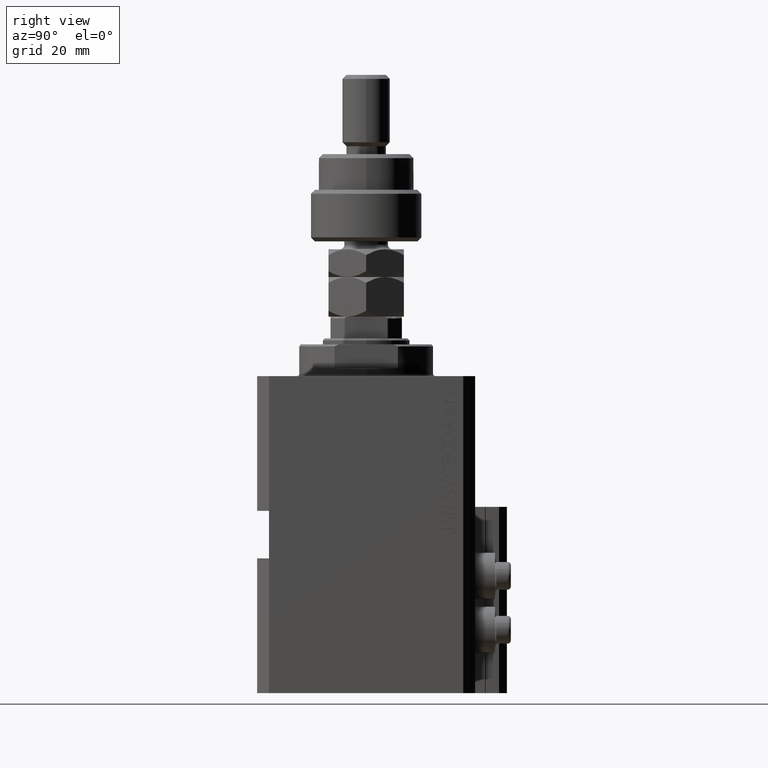
[diagram: clean part render]
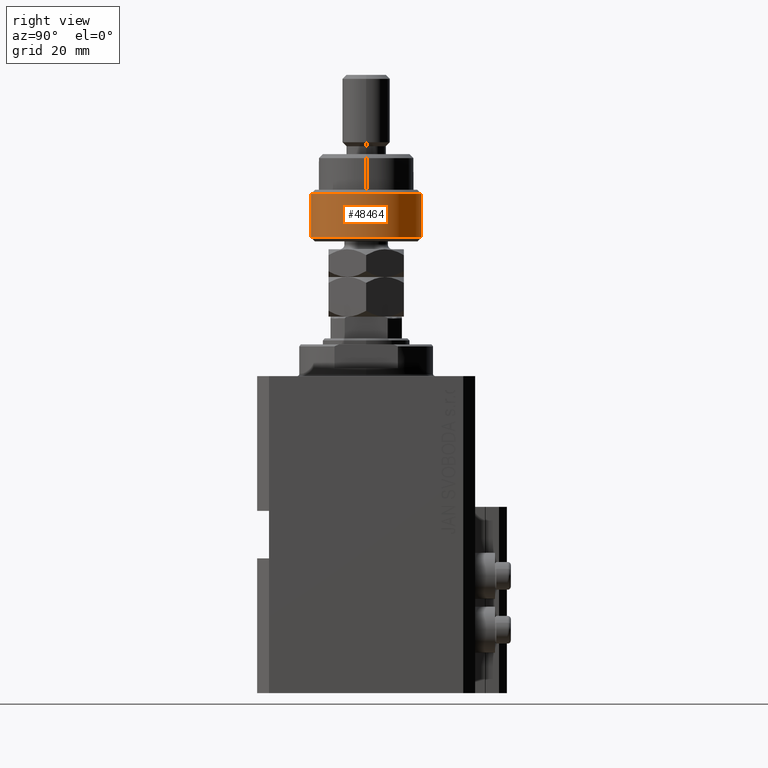
[diagram: same view with one face highlighted and labeled with its STEP entity id]
A machine part, right view. The second image highlights one B-rep face of the part: STEP entity #48464.
In plain terms, the highlighted cylindrical surface (partial cylindrical patch) has radius 14 mm, axis along (-0, -0, -1).
Its self-contained STEP definition (entity closure, byte-faithful):
#840 = ORIENTED_EDGE ( 'NONE', *, *, #25287, .F. ) ;
#1085 = DIRECTION ( 'NONE',  ( -0.000000000000000000, -0.000000000000000000, 1.000000000000000000 ) ) ;
#1456 = CARTESIAN_POINT ( 'NONE',  ( -12.64911064067351809, 6.000000000000000000, 12.00000000000002842 ) ) ;
#2351 = ORIENTED_EDGE ( 'NONE', *, *, #43654, .T. ) ;
#2534 = CARTESIAN_POINT ( 'NONE',  ( -12.64911064067351809, 6.000000000000000000, 14.50000000000000000 ) ) ;
#4039 = VECTOR ( 'NONE', #10296, 1000.000000000000000 ) ;
#5345 = EDGE_CURVE ( 'NONE', #43954, #23057, #42422, .T. ) ;
#5935 = CARTESIAN_POINT ( 'NONE',  ( 14.00000000000000000, 0.000000000000000000, 1.000000000000018208 ) ) ;
#6832 = CARTESIAN_POINT ( 'NONE',  ( -12.64911064067351809, 6.000000000000000000, 1.000000000000021760 ) ) ;
#7288 = CIRCLE ( 'NONE', #22507, 14.00000000000000000 ) ;
#8462 = DIRECTION ( 'NONE',  ( -0.000000000000000000, -0.000000000000000000, 1.000000000000000000 ) ) ;
#10296 = DIRECTION ( 'NONE',  ( -0.000000000000000000, -0.000000000000000000, -1.000000000000000000 ) ) ;
#11150 = ORIENTED_EDGE ( 'NONE', *, *, #5345, .T. ) ;
#16379 = DIRECTION ( 'NONE',  ( 1.000000000000000000, 0.000000000000000000, 0.000000000000000000 ) ) ;
#17806 = VERTEX_POINT ( 'NONE', #5935 ) ;
#18349 = CARTESIAN_POINT ( 'NONE',  ( -12.64911064067351809, -5.999999999999999112, 1.000000000000021760 ) ) ;
#20483 = VERTEX_POINT ( 'NONE', #18349 ) ;
#20768 = DIRECTION ( 'NONE',  ( -0.000000000000000000, -0.000000000000000000, -1.000000000000000000 ) ) ;
#22507 = AXIS2_PLACEMENT_3D ( 'NONE', #42864, #8462, #23770 ) ;
#22903 = AXIS2_PLACEMENT_3D ( 'NONE', #43396, #20768, #28564 ) ;
#23057 = VERTEX_POINT ( 'NONE', #27677 ) ;
#23770 = DIRECTION ( 'NONE',  ( 1.000000000000000000, 0.000000000000000000, 0.000000000000000000 ) ) ;
#24194 = EDGE_LOOP ( 'NONE', ( #840, #11150, #38056, #2351, #26756 ) ) ;
#25287 = EDGE_CURVE ( 'NONE', #43954, #36968, #45698, .T. ) ;
#26525 = EDGE_CURVE ( 'NONE', #17806, #36968, #7288, .T. ) ;
#26756 = ORIENTED_EDGE ( 'NONE', *, *, #26525, .T. ) ;
#27677 = CARTESIAN_POINT ( 'NONE',  ( -12.64911064067351809, -5.999999999999999112, 12.00000000000002842 ) ) ;
#27932 = CARTESIAN_POINT ( 'NONE',  ( 0.000000000000000000, 0.000000000000000000, 1.000000000000018208 ) ) ;
#28564 = DIRECTION ( 'NONE',  ( -1.000000000000000000, 0.000000000000000000, 0.000000000000000000 ) ) ;
#29923 = CIRCLE ( 'NONE', #39566, 14.00000000000000000 ) ;
#31463 = DIRECTION ( 'NONE',  ( 0.000000000000000000, 0.000000000000000000, -1.000000000000000000 ) ) ;
#32811 = CYLINDRICAL_SURFACE ( 'NONE', #22903, 14.00000000000000000 ) ;
#35479 = DIRECTION ( 'NONE',  ( 1.000000000000000000, 0.000000000000000000, 0.000000000000000000 ) ) ;
#36419 = LINE ( 'NONE', #36662, #46572 ) ;
#36662 = CARTESIAN_POINT ( 'NONE',  ( -12.64911064067351809, -5.999999999999999112, 14.50000000000000000 ) ) ;
#36968 = VERTEX_POINT ( 'NONE', #6832 ) ;
#37341 = EDGE_CURVE ( 'NONE', #23057, #20483, #36419, .T. ) ;
#38056 = ORIENTED_EDGE ( 'NONE', *, *, #37341, .T. ) ;
#39249 = CARTESIAN_POINT ( 'NONE',  ( 0.000000000000000000, 0.000000000000000000, 12.00000000000002842 ) ) ;
#39566 = AXIS2_PLACEMENT_3D ( 'NONE', #27932, #1085, #16379 ) ;
#42422 = CIRCLE ( 'NONE', #43243, 14.00000000000000000 ) ;
#42864 = CARTESIAN_POINT ( 'NONE',  ( 0.000000000000000000, 0.000000000000000000, 1.000000000000018208 ) ) ;
#43243 = AXIS2_PLACEMENT_3D ( 'NONE', #39249, #31463, #35479 ) ;
#43396 = CARTESIAN_POINT ( 'NONE',  ( 0.000000000000000000, 0.000000000000000000, 13.00000000000000000 ) ) ;
#43640 = FACE_OUTER_BOUND ( 'NONE', #24194, .T. ) ;
#43654 = EDGE_CURVE ( 'NONE', #20483, #17806, #29923, .T. ) ;
#43954 = VERTEX_POINT ( 'NONE', #1456 ) ;
#45698 = LINE ( 'NONE', #2534, #4039 ) ;
#46572 = VECTOR ( 'NONE', #48444, 1000.000000000000000 ) ;
#48444 = DIRECTION ( 'NONE',  ( -0.000000000000000000, -0.000000000000000000, -1.000000000000000000 ) ) ;
#48464 = ADVANCED_FACE ( 'NONE', ( #43640 ), #32811, .T. ) ;